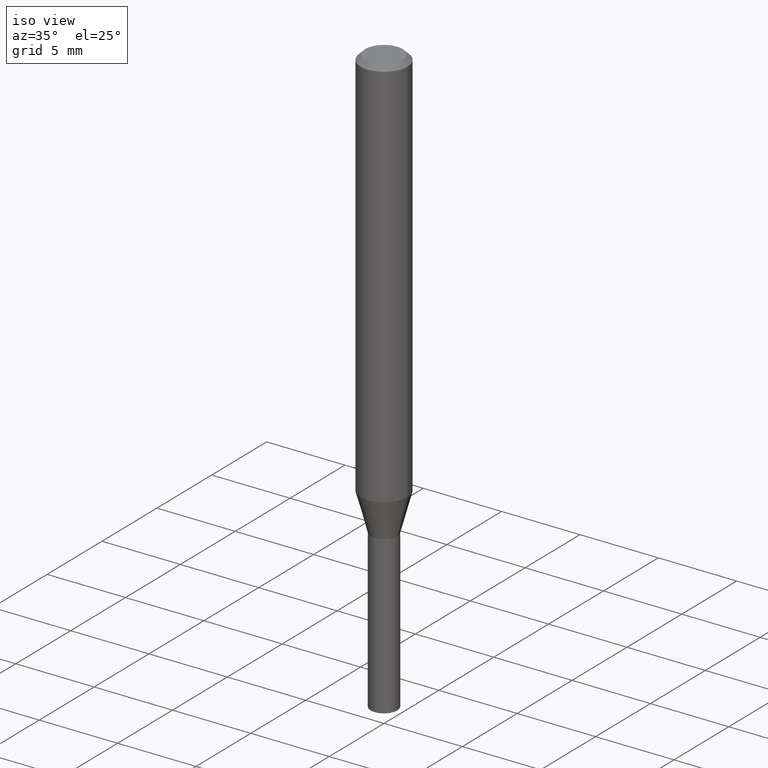
[diagram: clean part render]
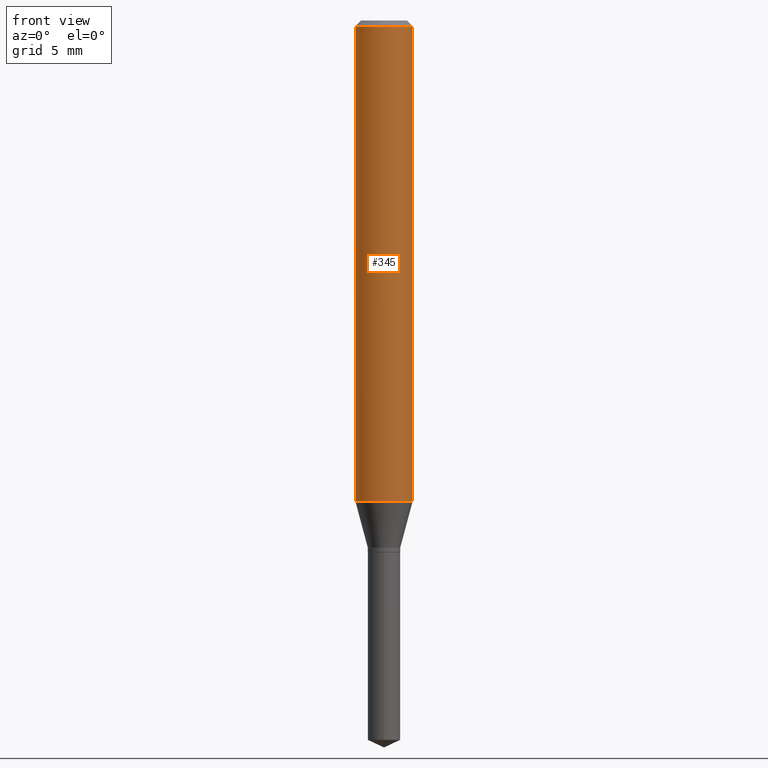
[diagram: tour spotlight — one face highlighted and labeled with its STEP entity id]
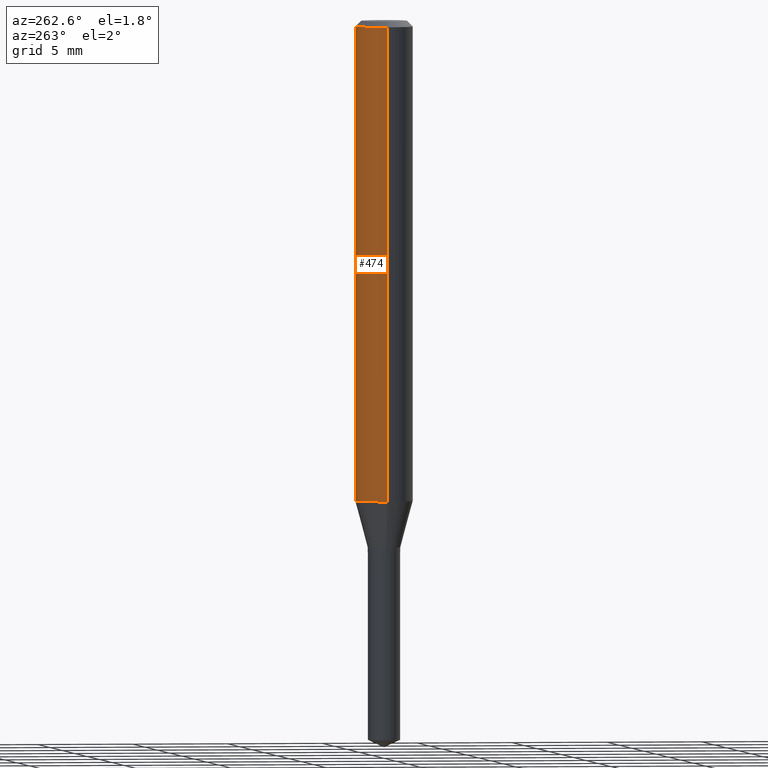
[diagram: tour spotlight — one face highlighted and labeled with its STEP entity id]
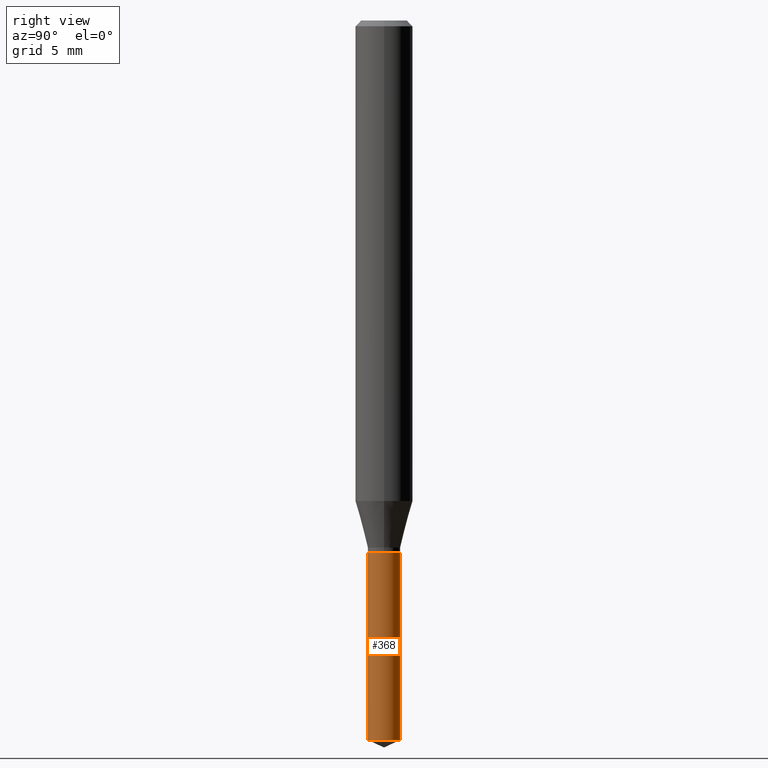
[diagram: tour spotlight — one face highlighted and labeled with its STEP entity id]
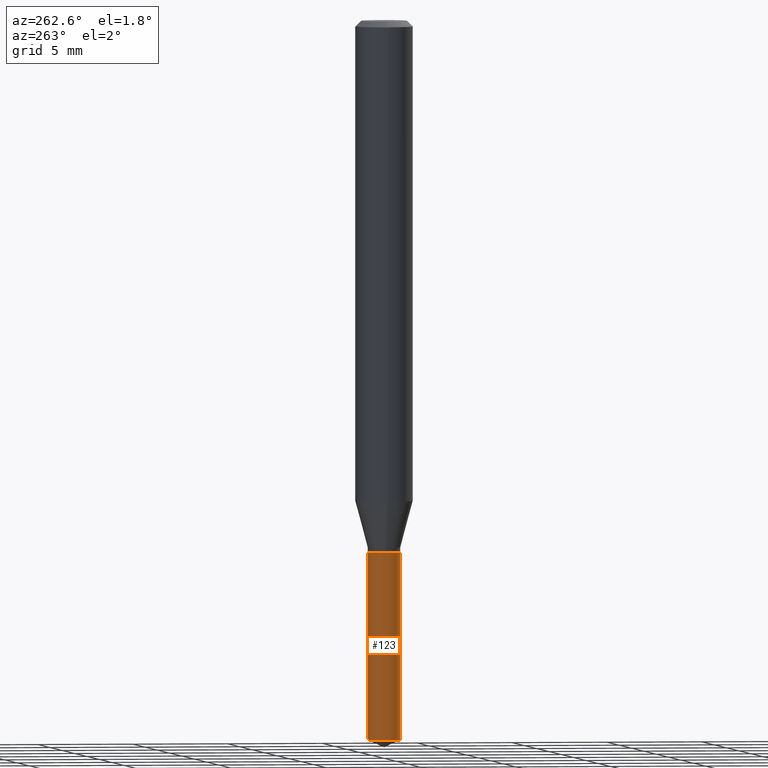
[diagram: tour spotlight — one face highlighted and labeled with its STEP entity id]
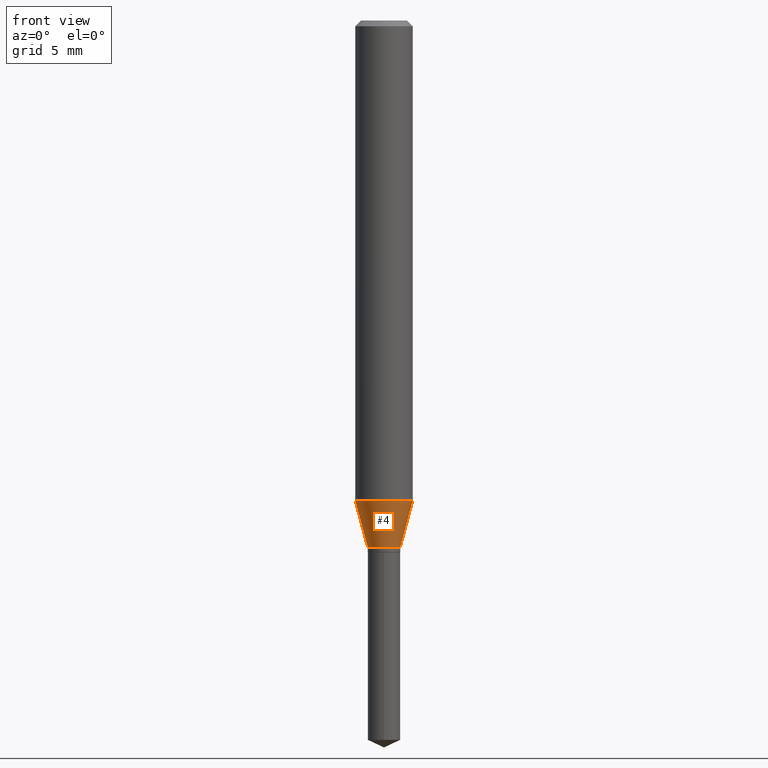
[diagram: tour spotlight — one face highlighted and labeled with its STEP entity id]
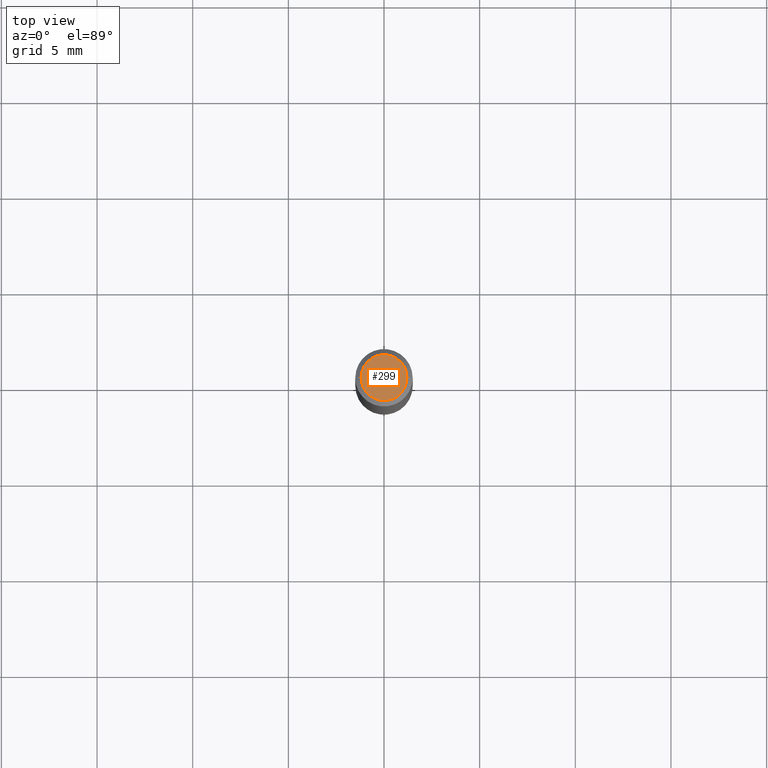
[diagram: tour spotlight — one face highlighted and labeled with its STEP entity id]
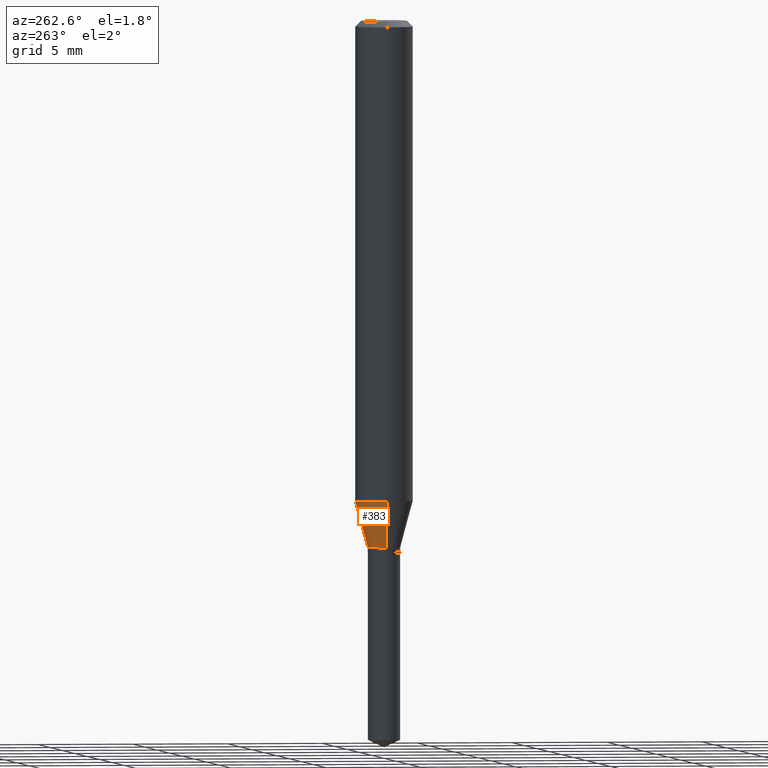
[diagram: tour spotlight — one face highlighted and labeled with its STEP entity id]
A machine part: a face-by-face anatomy tour. The part has 17 B-rep faces; the first image is the clean iso view, then the 7 largest visible faces are spotlighted one at a time (largest first), each with its STEP entity span.

Face 1 — front view, entity #345. In plain terms, the highlighted cylindrical surface (edge-blend (fillet) strip) has radius 1.4999 mm, axis along (-0, 0, 1).
Definition (entity closure, byte-faithful):
#6 = AXIS2_PLACEMENT_3D ( 'NONE', #455, #20, #164 ) ;
#20 = DIRECTION ( 'NONE',  ( -2.445468806185136597E-29, 3.491481338843145583E-15, 1.000000000000000000 ) ) ;
#23 = AXIS2_PLACEMENT_3D ( 'NONE', #189, #153, #311 ) ;
#41 = DIRECTION ( 'NONE',  ( -2.445468806185136877E-29, 3.491481338843145188E-15, 1.000000000000000000 ) ) ;
#42 = VERTEX_POINT ( 'NONE', #424 ) ;
#48 = CYLINDRICAL_SURFACE ( 'NONE', #348, 0.05905000000000006077 ) ;
#55 = EDGE_CURVE ( 'NONE', #42, #464, #361, .T. ) ;
#68 = CIRCLE ( 'NONE', #6, 0.05905000000000011628 ) ;
#76 = EDGE_CURVE ( 'NONE', #42, #434, #68, .T. ) ;
#88 = DIRECTION ( 'NONE',  ( -2.445468806185136877E-29, 3.491481338843145188E-15, 1.000000000000000000 ) ) ;
#98 = DIRECTION ( 'NONE',  ( 1.000000000000000000, -6.982962677686266711E-15, 4.876176775795935793E-29 ) ) ;
#148 = EDGE_LOOP ( 'NONE', ( #158, #242, #252, #162 ) ) ;
#153 = DIRECTION ( 'NONE',  ( -2.445468806185136597E-29, 3.491481338843145583E-15, 1.000000000000000000 ) ) ;
#158 = ORIENTED_EDGE ( 'NONE', *, *, #55, .F. ) ;
#162 = ORIENTED_EDGE ( 'NONE', *, *, #393, .F. ) ;
#164 = DIRECTION ( 'NONE',  ( 1.000000000000000000, -6.982962677686266711E-15, 0.000000000000000000 ) ) ;
#189 = CARTESIAN_POINT ( 'NONE',  ( 2.888098660104664204E-31, -4.123439461173780263E-17, -0.01181000000000007218 ) ) ;
#204 = VERTEX_POINT ( 'NONE', #413 ) ;
#205 = CARTESIAN_POINT ( 'NONE',  ( -0.05904999999999999832, -1.327508530224135714E-15, -0.01181000000000007218 ) ) ;
#242 = ORIENTED_EDGE ( 'NONE', *, *, #76, .T. ) ;
#252 = ORIENTED_EDGE ( 'NONE', *, *, #283, .T. ) ;
#280 = DIRECTION ( 'NONE',  ( -2.445468806185136597E-29, 3.491481338843145583E-15, 1.000000000000000000 ) ) ;
#283 = EDGE_CURVE ( 'NONE', #434, #204, #421, .T. ) ;
#311 = DIRECTION ( 'NONE',  ( 1.000000000000000000, -6.982962677686266711E-15, 0.000000000000000000 ) ) ;
#321 = CARTESIAN_POINT ( 'NONE',  ( 0.05905000000000011628, -3.865277582886589578E-15, -0.9889594993262362799 ) ) ;
#345 = ADVANCED_FACE ( 'NONE', ( #387 ), #48, .T. ) ;
#348 = AXIS2_PLACEMENT_3D ( 'NONE', #470, #280, #98 ) ;
#361 = LINE ( 'NONE', #370, #376 ) ;
#370 = CARTESIAN_POINT ( 'NONE',  ( -0.05905000000000006077, 4.195754854663395916E-16, -2.904631170795524694E-30 ) ) ;
#376 = VECTOR ( 'NONE', #88, 39.37007874015748143 ) ;
#381 = CARTESIAN_POINT ( 'NONE',  ( 0.05905000000000006077, -4.123439461173744764E-16, 2.879382386107503023E-30 ) ) ;
#387 = FACE_OUTER_BOUND ( 'NONE', #148, .T. ) ;
#393 = EDGE_CURVE ( 'NONE', #464, #204, #453, .T. ) ;
#413 = CARTESIAN_POINT ( 'NONE',  ( 0.05904999999999999832, -4.535783407291118600E-16, -0.01181000000000007218 ) ) ;
#421 = LINE ( 'NONE', #381, #458 ) ;
#424 = CARTESIAN_POINT ( 'NONE',  ( -0.05905000000000011628, -3.033358151302874376E-15, -0.9889594993262362799 ) ) ;
#434 = VERTEX_POINT ( 'NONE', #321 ) ;
#453 = CIRCLE ( 'NONE', #23, 0.05904999999999999832 ) ;
#455 = CARTESIAN_POINT ( 'NONE',  ( 2.418469606182781541E-29, -3.452933636769214658E-15, -0.9889594993262362799 ) ) ;
#458 = VECTOR ( 'NONE', #41, 39.37007874015748143 ) ;
#464 = VERTEX_POINT ( 'NONE', #205 ) ;
#470 = CARTESIAN_POINT ( 'NONE',  ( 0.000000000000000000, 0.000000000000000000, 0.000000000000000000 ) ) ;

Face 2 — auxiliary view, entity #474. In plain terms, the highlighted cylindrical surface (edge-blend (fillet) strip) has radius 1.4999 mm, axis along (-0, 0, 1).
Definition (entity closure, byte-faithful):
#41 = DIRECTION ( 'NONE',  ( -2.445468806185136877E-29, 3.491481338843145188E-15, 1.000000000000000000 ) ) ;
#42 = VERTEX_POINT ( 'NONE', #424 ) ;
#51 = ORIENTED_EDGE ( 'NONE', *, *, #462, .T. ) ;
#55 = EDGE_CURVE ( 'NONE', #42, #464, #361, .T. ) ;
#59 = EDGE_CURVE ( 'NONE', #204, #464, #202, .T. ) ;
#65 = DIRECTION ( 'NONE',  ( 1.000000000000000000, -6.982962677686266711E-15, 0.000000000000000000 ) ) ;
#81 = ORIENTED_EDGE ( 'NONE', *, *, #59, .F. ) ;
#88 = DIRECTION ( 'NONE',  ( -2.445468806185136877E-29, 3.491481338843145188E-15, 1.000000000000000000 ) ) ;
#110 = ORIENTED_EDGE ( 'NONE', *, *, #55, .T. ) ;
#129 = DIRECTION ( 'NONE',  ( -2.445468806185136597E-29, 3.491481338843145583E-15, 1.000000000000000000 ) ) ;
#130 = CARTESIAN_POINT ( 'NONE',  ( 0.000000000000000000, 0.000000000000000000, 0.000000000000000000 ) ) ;
#136 = DIRECTION ( 'NONE',  ( 1.000000000000000000, -6.982962677686266711E-15, 4.876176775795935793E-29 ) ) ;
#167 = FACE_OUTER_BOUND ( 'NONE', #226, .T. ) ;
#181 = AXIS2_PLACEMENT_3D ( 'NONE', #397, #129, #65 ) ;
#182 = AXIS2_PLACEMENT_3D ( 'NONE', #201, #207, #431 ) ;
#201 = CARTESIAN_POINT ( 'NONE',  ( 2.418469606182781541E-29, -3.452933636769214658E-15, -0.9889594993262362799 ) ) ;
#202 = CIRCLE ( 'NONE', #181, 0.05904999999999999832 ) ;
#204 = VERTEX_POINT ( 'NONE', #413 ) ;
#205 = CARTESIAN_POINT ( 'NONE',  ( -0.05904999999999999832, -1.327508530224135714E-15, -0.01181000000000007218 ) ) ;
#207 = DIRECTION ( 'NONE',  ( -2.445468806185136597E-29, 3.491481338843145583E-15, 1.000000000000000000 ) ) ;
#226 = EDGE_LOOP ( 'NONE', ( #51, #110, #81, #265 ) ) ;
#243 = CYLINDRICAL_SURFACE ( 'NONE', #254, 0.05905000000000006077 ) ;
#254 = AXIS2_PLACEMENT_3D ( 'NONE', #130, #349, #136 ) ;
#265 = ORIENTED_EDGE ( 'NONE', *, *, #283, .F. ) ;
#283 = EDGE_CURVE ( 'NONE', #434, #204, #421, .T. ) ;
#321 = CARTESIAN_POINT ( 'NONE',  ( 0.05905000000000011628, -3.865277582886589578E-15, -0.9889594993262362799 ) ) ;
#349 = DIRECTION ( 'NONE',  ( -2.445468806185136597E-29, 3.491481338843145583E-15, 1.000000000000000000 ) ) ;
#361 = LINE ( 'NONE', #370, #376 ) ;
#370 = CARTESIAN_POINT ( 'NONE',  ( -0.05905000000000006077, 4.195754854663395916E-16, -2.904631170795524694E-30 ) ) ;
#376 = VECTOR ( 'NONE', #88, 39.37007874015748143 ) ;
#381 = CARTESIAN_POINT ( 'NONE',  ( 0.05905000000000006077, -4.123439461173744764E-16, 2.879382386107503023E-30 ) ) ;
#391 = CIRCLE ( 'NONE', #182, 0.05905000000000011628 ) ;
#397 = CARTESIAN_POINT ( 'NONE',  ( 2.888098660104664204E-31, -4.123439461173780263E-17, -0.01181000000000007218 ) ) ;
#413 = CARTESIAN_POINT ( 'NONE',  ( 0.05904999999999999832, -4.535783407291118600E-16, -0.01181000000000007218 ) ) ;
#421 = LINE ( 'NONE', #381, #458 ) ;
#424 = CARTESIAN_POINT ( 'NONE',  ( -0.05905000000000011628, -3.033358151302874376E-15, -0.9889594993262362799 ) ) ;
#431 = DIRECTION ( 'NONE',  ( 1.000000000000000000, -6.982962677686266711E-15, 0.000000000000000000 ) ) ;
#434 = VERTEX_POINT ( 'NONE', #321 ) ;
#458 = VECTOR ( 'NONE', #41, 39.37007874015748143 ) ;
#462 = EDGE_CURVE ( 'NONE', #434, #42, #391, .T. ) ;
#464 = VERTEX_POINT ( 'NONE', #205 ) ;
#474 = ADVANCED_FACE ( 'NONE', ( #167 ), #243, .T. ) ;

Face 3 — right view, entity #368. In plain terms, the highlighted cylindrical surface (edge-blend (fillet) strip) has radius 0.8496 mm, axis along (-0, 0, 1).
Definition (entity closure, byte-faithful):
#12 = CARTESIAN_POINT ( 'NONE',  ( 2.676565608369631794E-29, -3.821426325363822773E-15, -1.094499999999999806 ) ) ;
#18 = LINE ( 'NONE', #399, #22 ) ;
#22 = VECTOR ( 'NONE', #56, 39.37007874015748143 ) ;
#30 = VERTEX_POINT ( 'NONE', #120 ) ;
#56 = DIRECTION ( 'NONE',  ( -2.445470214571802396E-29, 3.491479321953280158E-15, 1.000000000000000000 ) ) ;
#64 = DIRECTION ( 'NONE',  ( -6.982962677686264344E-15, -1.000000000000000000, 0.000000000000000000 ) ) ;
#89 = EDGE_CURVE ( 'NONE', #30, #92, #322, .T. ) ;
#92 = VERTEX_POINT ( 'NONE', #225 ) ;
#94 = AXIS2_PLACEMENT_3D ( 'NONE', #335, #144, #64 ) ;
#114 = DIRECTION ( 'NONE',  ( -2.445470214571802116E-29, 3.491479321953280158E-15, 1.000000000000000000 ) ) ;
#120 = CARTESIAN_POINT ( 'NONE',  ( -2.335801015685693702E-16, -0.03345000000000517004, -1.480502008834715388 ) ) ;
#144 = DIRECTION ( 'NONE',  ( -2.445470214571802116E-29, 3.491479321953280158E-15, 1.000000000000000000 ) ) ;
#193 = ORIENTED_EDGE ( 'NONE', *, *, #468, .T. ) ;
#197 = AXIS2_PLACEMENT_3D ( 'NONE', #374, #114, #482 ) ;
#208 = EDGE_LOOP ( 'NONE', ( #480, #193, #456, #263 ) ) ;
#225 = CARTESIAN_POINT ( 'NONE',  ( 2.376765451117897052E-16, 0.03344999999999482415, -1.480502008834715388 ) ) ;
#244 = DIRECTION ( 'NONE',  ( -2.445470214571802116E-29, 3.491479321953280158E-15, 1.000000000000000000 ) ) ;
#246 = DIRECTION ( 'NONE',  ( -2.445470214571802396E-29, 3.491479321953280158E-15, 1.000000000000000000 ) ) ;
#250 = CARTESIAN_POINT ( 'NONE',  ( -2.335801015685788365E-16, -0.03345000000000382390, -1.094499999999999806 ) ) ;
#259 = AXIS2_PLACEMENT_3D ( 'NONE', #12, #244, #319 ) ;
#263 = ORIENTED_EDGE ( 'NONE', *, *, #289, .F. ) ;
#267 = VECTOR ( 'NONE', #246, 39.37007874015748143 ) ;
#277 = CARTESIAN_POINT ( 'NONE',  ( 2.376765451117897545E-16, 0.03344999999999617724, -1.094500000000000028 ) ) ;
#289 = EDGE_CURVE ( 'NONE', #30, #352, #18, .T. ) ;
#300 = CYLINDRICAL_SURFACE ( 'NONE', #197, 0.03345000000000000057 ) ;
#319 = DIRECTION ( 'NONE',  ( -6.982962677686264344E-15, -1.000000000000000000, 4.083479811157344024E-15 ) ) ;
#322 = CIRCLE ( 'NONE', #94, 0.03345000000000000057 ) ;
#324 = EDGE_CURVE ( 'NONE', #352, #417, #408, .T. ) ;
#334 = FACE_OUTER_BOUND ( 'NONE', #208, .T. ) ;
#335 = CARTESIAN_POINT ( 'NONE',  ( 3.620522023739810331E-29, -5.169144357442658314E-15, -1.480502008834715388 ) ) ;
#352 = VERTEX_POINT ( 'NONE', #250 ) ;
#368 = ADVANCED_FACE ( 'NONE', ( #334 ), #300, .T. ) ;
#374 = CARTESIAN_POINT ( 'NONE',  ( 2.676565608369631794E-29, -3.821426325363822773E-15, -1.094499999999999806 ) ) ;
#385 = LINE ( 'NONE', #389, #267 ) ;
#389 = CARTESIAN_POINT ( 'NONE',  ( 2.376765451117802389E-16, 0.03344999999999617724, -1.094500000000000028 ) ) ;
#399 = CARTESIAN_POINT ( 'NONE',  ( -2.335801015685788365E-16, -0.03345000000000382390, -1.094499999999999806 ) ) ;
#408 = CIRCLE ( 'NONE', #259, 0.03345000000000000057 ) ;
#417 = VERTEX_POINT ( 'NONE', #277 ) ;
#456 = ORIENTED_EDGE ( 'NONE', *, *, #324, .F. ) ;
#468 = EDGE_CURVE ( 'NONE', #92, #417, #385, .T. ) ;
#480 = ORIENTED_EDGE ( 'NONE', *, *, #89, .T. ) ;
#482 = DIRECTION ( 'NONE',  ( -6.982962677686264344E-15, -1.000000000000000000, 4.083479811157344024E-15 ) ) ;

Face 4 — auxiliary view, entity #123. In plain terms, the highlighted cylindrical surface (edge-blend (fillet) strip) has radius 0.8496 mm, axis along (-0, 0, 1).
Definition (entity closure, byte-faithful):
#18 = LINE ( 'NONE', #399, #22 ) ;
#22 = VECTOR ( 'NONE', #56, 39.37007874015748143 ) ;
#24 = DIRECTION ( 'NONE',  ( -6.982962677686264344E-15, -1.000000000000000000, 4.083479811157344024E-15 ) ) ;
#26 = ORIENTED_EDGE ( 'NONE', *, *, #483, .T. ) ;
#30 = VERTEX_POINT ( 'NONE', #120 ) ;
#56 = DIRECTION ( 'NONE',  ( -2.445470214571802396E-29, 3.491479321953280158E-15, 1.000000000000000000 ) ) ;
#70 = EDGE_LOOP ( 'NONE', ( #245, #26, #469, #388 ) ) ;
#78 = AXIS2_PLACEMENT_3D ( 'NONE', #427, #210, #240 ) ;
#92 = VERTEX_POINT ( 'NONE', #225 ) ;
#120 = CARTESIAN_POINT ( 'NONE',  ( -2.335801015685693702E-16, -0.03345000000000517004, -1.480502008834715388 ) ) ;
#123 = ADVANCED_FACE ( 'NONE', ( #217 ), #445, .T. ) ;
#124 = DIRECTION ( 'NONE',  ( -6.982962677686264344E-15, -1.000000000000000000, 4.083479811157344024E-15 ) ) ;
#133 = AXIS2_PLACEMENT_3D ( 'NONE', #488, #375, #24 ) ;
#134 = CIRCLE ( 'NONE', #78, 0.03345000000000000057 ) ;
#210 = DIRECTION ( 'NONE',  ( -2.445470214571802116E-29, 3.491479321953280158E-15, 1.000000000000000000 ) ) ;
#212 = AXIS2_PLACEMENT_3D ( 'NONE', #346, #234, #124 ) ;
#217 = FACE_OUTER_BOUND ( 'NONE', #70, .T. ) ;
#225 = CARTESIAN_POINT ( 'NONE',  ( 2.376765451117897052E-16, 0.03344999999999482415, -1.480502008834715388 ) ) ;
#234 = DIRECTION ( 'NONE',  ( -2.445470214571802116E-29, 3.491479321953280158E-15, 1.000000000000000000 ) ) ;
#236 = CIRCLE ( 'NONE', #212, 0.03345000000000000057 ) ;
#240 = DIRECTION ( 'NONE',  ( -6.982962677686264344E-15, -1.000000000000000000, 0.000000000000000000 ) ) ;
#245 = ORIENTED_EDGE ( 'NONE', *, *, #468, .F. ) ;
#246 = DIRECTION ( 'NONE',  ( -2.445470214571802396E-29, 3.491479321953280158E-15, 1.000000000000000000 ) ) ;
#250 = CARTESIAN_POINT ( 'NONE',  ( -2.335801015685788365E-16, -0.03345000000000382390, -1.094499999999999806 ) ) ;
#267 = VECTOR ( 'NONE', #246, 39.37007874015748143 ) ;
#270 = EDGE_CURVE ( 'NONE', #417, #352, #236, .T. ) ;
#277 = CARTESIAN_POINT ( 'NONE',  ( 2.376765451117897545E-16, 0.03344999999999617724, -1.094500000000000028 ) ) ;
#289 = EDGE_CURVE ( 'NONE', #30, #352, #18, .T. ) ;
#346 = CARTESIAN_POINT ( 'NONE',  ( 2.676565608369631794E-29, -3.821426325363822773E-15, -1.094499999999999806 ) ) ;
#352 = VERTEX_POINT ( 'NONE', #250 ) ;
#375 = DIRECTION ( 'NONE',  ( -2.445470214571802116E-29, 3.491479321953280158E-15, 1.000000000000000000 ) ) ;
#385 = LINE ( 'NONE', #389, #267 ) ;
#388 = ORIENTED_EDGE ( 'NONE', *, *, #270, .F. ) ;
#389 = CARTESIAN_POINT ( 'NONE',  ( 2.376765451117802389E-16, 0.03344999999999617724, -1.094500000000000028 ) ) ;
#399 = CARTESIAN_POINT ( 'NONE',  ( -2.335801015685788365E-16, -0.03345000000000382390, -1.094499999999999806 ) ) ;
#417 = VERTEX_POINT ( 'NONE', #277 ) ;
#427 = CARTESIAN_POINT ( 'NONE',  ( 3.620522023739810331E-29, -5.169144357442658314E-15, -1.480502008834715388 ) ) ;
#445 = CYLINDRICAL_SURFACE ( 'NONE', #133, 0.03345000000000000057 ) ;
#468 = EDGE_CURVE ( 'NONE', #92, #417, #385, .T. ) ;
#469 = ORIENTED_EDGE ( 'NONE', *, *, #289, .T. ) ;
#483 = EDGE_CURVE ( 'NONE', #92, #30, #134, .T. ) ;
#488 = CARTESIAN_POINT ( 'NONE',  ( 2.676565608369631794E-29, -3.821426325363822773E-15, -1.094499999999999806 ) ) ;

Face 5 — front view, entity #4. In plain terms, the highlighted conical surface has half-angle 15 deg.
Definition (entity closure, byte-faithful):
#3 = FACE_OUTER_BOUND ( 'NONE', #113, .T. ) ;
#4 = ADVANCED_FACE ( 'NONE', ( #3 ), #220, .T. ) ;
#6 = AXIS2_PLACEMENT_3D ( 'NONE', #455, #20, #164 ) ;
#20 = DIRECTION ( 'NONE',  ( -2.445468806185136597E-29, 3.491481338843145583E-15, 1.000000000000000000 ) ) ;
#42 = VERTEX_POINT ( 'NONE', #424 ) ;
#68 = CIRCLE ( 'NONE', #6, 0.05905000000000011628 ) ;
#76 = EDGE_CURVE ( 'NONE', #42, #434, #68, .T. ) ;
#91 = LINE ( 'NONE', #467, #432 ) ;
#109 = LINE ( 'NONE', #183, #174 ) ;
#113 = EDGE_LOOP ( 'NONE', ( #223, #380, #369, #426 ) ) ;
#119 = CARTESIAN_POINT ( 'NONE',  ( 2.652110920307780249E-29, -3.786511511975391124E-15, -1.084499999999999797 ) ) ;
#164 = DIRECTION ( 'NONE',  ( 1.000000000000000000, -6.982962677686266711E-15, 0.000000000000000000 ) ) ;
#165 = CARTESIAN_POINT ( 'NONE',  ( -0.03345000000000000057, -3.565419503223141645E-15, -1.084499999999999797 ) ) ;
#171 = EDGE_CURVE ( 'NONE', #398, #42, #109, .T. ) ;
#174 = VECTOR ( 'NONE', #448, 39.37007874015748854 ) ;
#183 = CARTESIAN_POINT ( 'NONE',  ( -0.03345000000000000057, -3.548834966863637362E-15, -1.084499999999999797 ) ) ;
#203 = DIRECTION ( 'NONE',  ( 0.2588190451025211281, 1.565188264969622954E-15, 0.9659258262890679791 ) ) ;
#220 = CONICAL_SURFACE ( 'NONE', #402, 0.03345000000000000057, 0.2617993877991498519 ) ;
#223 = ORIENTED_EDGE ( 'NONE', *, *, #171, .F. ) ;
#230 = AXIS2_PLACEMENT_3D ( 'NONE', #312, #429, #466 ) ;
#278 = CARTESIAN_POINT ( 'NONE',  ( 0.03345000000000000057, -4.020091613543996190E-15, -1.084499999999999797 ) ) ;
#305 = DIRECTION ( 'NONE',  ( -2.445468806185136597E-29, 3.491481338843145583E-15, 1.000000000000000000 ) ) ;
#312 = CARTESIAN_POINT ( 'NONE',  ( 2.652110920307780249E-29, -3.786511511975391124E-15, -1.084499999999999797 ) ) ;
#314 = EDGE_CURVE ( 'NONE', #323, #434, #91, .T. ) ;
#321 = CARTESIAN_POINT ( 'NONE',  ( 0.05905000000000011628, -3.865277582886589578E-15, -0.9889594993262362799 ) ) ;
#323 = VERTEX_POINT ( 'NONE', #278 ) ;
#369 = ORIENTED_EDGE ( 'NONE', *, *, #314, .T. ) ;
#380 = ORIENTED_EDGE ( 'NONE', *, *, #423, .T. ) ;
#398 = VERTEX_POINT ( 'NONE', #165 ) ;
#402 = AXIS2_PLACEMENT_3D ( 'NONE', #119, #305, #459 ) ;
#423 = EDGE_CURVE ( 'NONE', #398, #323, #443, .T. ) ;
#424 = CARTESIAN_POINT ( 'NONE',  ( -0.05905000000000011628, -3.033358151302874376E-15, -0.9889594993262362799 ) ) ;
#426 = ORIENTED_EDGE ( 'NONE', *, *, #76, .F. ) ;
#429 = DIRECTION ( 'NONE',  ( -2.445468806185136597E-29, 3.491481338843145583E-15, 1.000000000000000000 ) ) ;
#432 = VECTOR ( 'NONE', #203, 39.37007874015748854 ) ;
#434 = VERTEX_POINT ( 'NONE', #321 ) ;
#443 = CIRCLE ( 'NONE', #230, 0.03345000000000000057 ) ;
#448 = DIRECTION ( 'NONE',  ( -0.2588190451025211281, 5.211531920934547886E-15, 0.9659258262890679791 ) ) ;
#455 = CARTESIAN_POINT ( 'NONE',  ( 2.418469606182781541E-29, -3.452933636769214658E-15, -0.9889594993262362799 ) ) ;
#459 = DIRECTION ( 'NONE',  ( 1.000000000000000000, -6.982962677686264344E-15, 0.000000000000000000 ) ) ;
#466 = DIRECTION ( 'NONE',  ( 1.000000000000000000, -6.982962677686264344E-15, 0.000000000000000000 ) ) ;
#467 = CARTESIAN_POINT ( 'NONE',  ( 0.03345000000000000057, -4.020091613543996190E-15, -1.084499999999999797 ) ) ;

Face 6 — top view, entity #299. In plain terms, the highlighted planar face has unit normal (0, -0, -1).
Definition (entity closure, byte-faithful):
#15 = EDGE_CURVE ( 'NONE', #235, #295, #418, .T. ) ;
#111 = CIRCLE ( 'NONE', #478, 0.04724000000000000421 ) ;
#132 = DIRECTION ( 'NONE',  ( -1.000000000000000000, 6.982962677686265922E-15, -4.876176775795935793E-29 ) ) ;
#138 = DIRECTION ( 'NONE',  ( 1.000000000000000000, -6.982962677686266711E-15, 4.876185090822587894E-29 ) ) ;
#139 = PLANE ( 'NONE',  #306 ) ;
#155 = CARTESIAN_POINT ( 'NONE',  ( -0.04724000000000000421, 3.504923541997677355E-16, -3.380025165670481712E-19 ) ) ;
#161 = CARTESIAN_POINT ( 'NONE',  ( 8.265746106709734507E-48, -1.180129479067563789E-33, -3.380025165646692144E-19 ) ) ;
#179 = DIRECTION ( 'NONE',  ( 2.438088387897960049E-29, -3.491481338843145188E-15, -1.000000000000000000 ) ) ;
#209 = DIRECTION ( 'NONE',  ( -2.445468806185136597E-29, 3.491481338843145583E-15, 1.000000000000000000 ) ) ;
#211 = CARTESIAN_POINT ( 'NONE',  ( 0.04724000000000000421, -3.852183633974369345E-16, -3.380025165621689721E-19 ) ) ;
#235 = VERTEX_POINT ( 'NONE', #155 ) ;
#288 = CARTESIAN_POINT ( 'NONE',  ( 4.132873053354867254E-48, -5.900647395337818946E-34, -1.690012582823346072E-19 ) ) ;
#295 = VERTEX_POINT ( 'NONE', #211 ) ;
#299 = ADVANCED_FACE ( 'NONE', ( #475 ), #139, .F. ) ;
#306 = AXIS2_PLACEMENT_3D ( 'NONE', #288, #179, #132 ) ;
#308 = DIRECTION ( 'NONE',  ( -2.445468806185136597E-29, 3.491481338843145583E-15, 1.000000000000000000 ) ) ;
#347 = AXIS2_PLACEMENT_3D ( 'NONE', #161, #308, #461 ) ;
#350 = EDGE_LOOP ( 'NONE', ( #446, #473 ) ) ;
#353 = EDGE_CURVE ( 'NONE', #295, #235, #111, .T. ) ;
#395 = CARTESIAN_POINT ( 'NONE',  ( 8.265746106709734507E-48, -1.180129479067563789E-33, -3.380025165646692144E-19 ) ) ;
#418 = CIRCLE ( 'NONE', #347, 0.04724000000000000421 ) ;
#446 = ORIENTED_EDGE ( 'NONE', *, *, #15, .T. ) ;
#461 = DIRECTION ( 'NONE',  ( 1.000000000000000000, -6.982962677686266711E-15, 4.876185090822587894E-29 ) ) ;
#473 = ORIENTED_EDGE ( 'NONE', *, *, #353, .T. ) ;
#475 = FACE_OUTER_BOUND ( 'NONE', #350, .T. ) ;
#478 = AXIS2_PLACEMENT_3D ( 'NONE', #395, #209, #138 ) ;

Face 7 — auxiliary view, entity #383. In plain terms, the highlighted conical surface has half-angle 15 deg.
Definition (entity closure, byte-faithful):
#28 = DIRECTION ( 'NONE',  ( 1.000000000000000000, -6.982962677686264344E-15, 0.000000000000000000 ) ) ;
#39 = ORIENTED_EDGE ( 'NONE', *, *, #314, .F. ) ;
#42 = VERTEX_POINT ( 'NONE', #424 ) ;
#75 = ORIENTED_EDGE ( 'NONE', *, *, #171, .T. ) ;
#80 = CARTESIAN_POINT ( 'NONE',  ( 2.652110920307780249E-29, -3.786511511975391124E-15, -1.084499999999999797 ) ) ;
#91 = LINE ( 'NONE', #467, #432 ) ;
#100 = ORIENTED_EDGE ( 'NONE', *, *, #462, .F. ) ;
#109 = LINE ( 'NONE', #183, #174 ) ;
#116 = AXIS2_PLACEMENT_3D ( 'NONE', #80, #231, #241 ) ;
#165 = CARTESIAN_POINT ( 'NONE',  ( -0.03345000000000000057, -3.565419503223141645E-15, -1.084499999999999797 ) ) ;
#171 = EDGE_CURVE ( 'NONE', #398, #42, #109, .T. ) ;
#174 = VECTOR ( 'NONE', #448, 39.37007874015748854 ) ;
#178 = FACE_OUTER_BOUND ( 'NONE', #310, .T. ) ;
#182 = AXIS2_PLACEMENT_3D ( 'NONE', #201, #207, #431 ) ;
#183 = CARTESIAN_POINT ( 'NONE',  ( -0.03345000000000000057, -3.548834966863637362E-15, -1.084499999999999797 ) ) ;
#184 = ORIENTED_EDGE ( 'NONE', *, *, #253, .T. ) ;
#201 = CARTESIAN_POINT ( 'NONE',  ( 2.418469606182781541E-29, -3.452933636769214658E-15, -0.9889594993262362799 ) ) ;
#203 = DIRECTION ( 'NONE',  ( 0.2588190451025211281, 1.565188264969622954E-15, 0.9659258262890679791 ) ) ;
#207 = DIRECTION ( 'NONE',  ( -2.445468806185136597E-29, 3.491481338843145583E-15, 1.000000000000000000 ) ) ;
#213 = AXIS2_PLACEMENT_3D ( 'NONE', #224, #261, #28 ) ;
#224 = CARTESIAN_POINT ( 'NONE',  ( 2.652110920307780249E-29, -3.786511511975391124E-15, -1.084499999999999797 ) ) ;
#231 = DIRECTION ( 'NONE',  ( -2.445468806185136597E-29, 3.491481338843145583E-15, 1.000000000000000000 ) ) ;
#241 = DIRECTION ( 'NONE',  ( 1.000000000000000000, -6.982962677686264344E-15, 0.000000000000000000 ) ) ;
#253 = EDGE_CURVE ( 'NONE', #323, #398, #328, .T. ) ;
#261 = DIRECTION ( 'NONE',  ( -2.445468806185136597E-29, 3.491481338843145583E-15, 1.000000000000000000 ) ) ;
#278 = CARTESIAN_POINT ( 'NONE',  ( 0.03345000000000000057, -4.020091613543996190E-15, -1.084499999999999797 ) ) ;
#310 = EDGE_LOOP ( 'NONE', ( #184, #75, #100, #39 ) ) ;
#314 = EDGE_CURVE ( 'NONE', #323, #434, #91, .T. ) ;
#321 = CARTESIAN_POINT ( 'NONE',  ( 0.05905000000000011628, -3.865277582886589578E-15, -0.9889594993262362799 ) ) ;
#323 = VERTEX_POINT ( 'NONE', #278 ) ;
#328 = CIRCLE ( 'NONE', #116, 0.03345000000000000057 ) ;
#339 = CONICAL_SURFACE ( 'NONE', #213, 0.03345000000000000057, 0.2617993877991498519 ) ;
#383 = ADVANCED_FACE ( 'NONE', ( #178 ), #339, .T. ) ;
#391 = CIRCLE ( 'NONE', #182, 0.05905000000000011628 ) ;
#398 = VERTEX_POINT ( 'NONE', #165 ) ;
#424 = CARTESIAN_POINT ( 'NONE',  ( -0.05905000000000011628, -3.033358151302874376E-15, -0.9889594993262362799 ) ) ;
#431 = DIRECTION ( 'NONE',  ( 1.000000000000000000, -6.982962677686266711E-15, 0.000000000000000000 ) ) ;
#432 = VECTOR ( 'NONE', #203, 39.37007874015748854 ) ;
#434 = VERTEX_POINT ( 'NONE', #321 ) ;
#448 = DIRECTION ( 'NONE',  ( -0.2588190451025211281, 5.211531920934547886E-15, 0.9659258262890679791 ) ) ;
#462 = EDGE_CURVE ( 'NONE', #434, #42, #391, .T. ) ;
#467 = CARTESIAN_POINT ( 'NONE',  ( 0.03345000000000000057, -4.020091613543996190E-15, -1.084499999999999797 ) ) ;